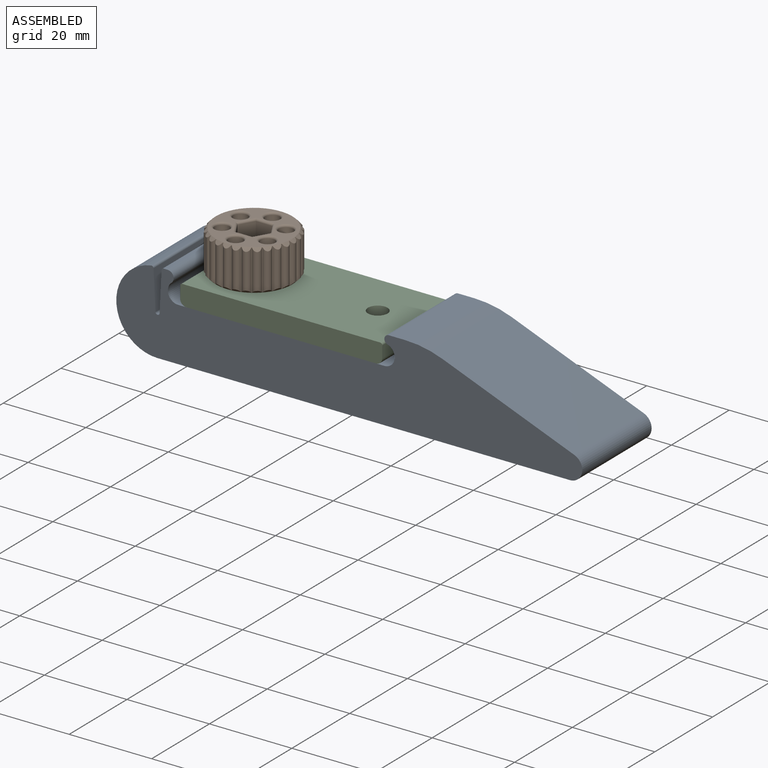
[diagram: assembled view]
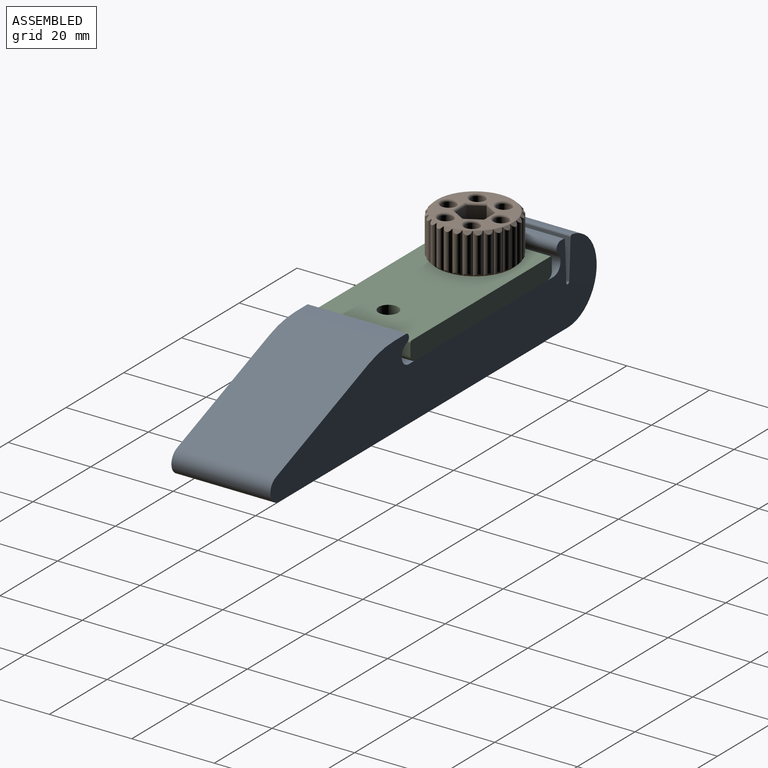
[diagram: assembled view, second angle]
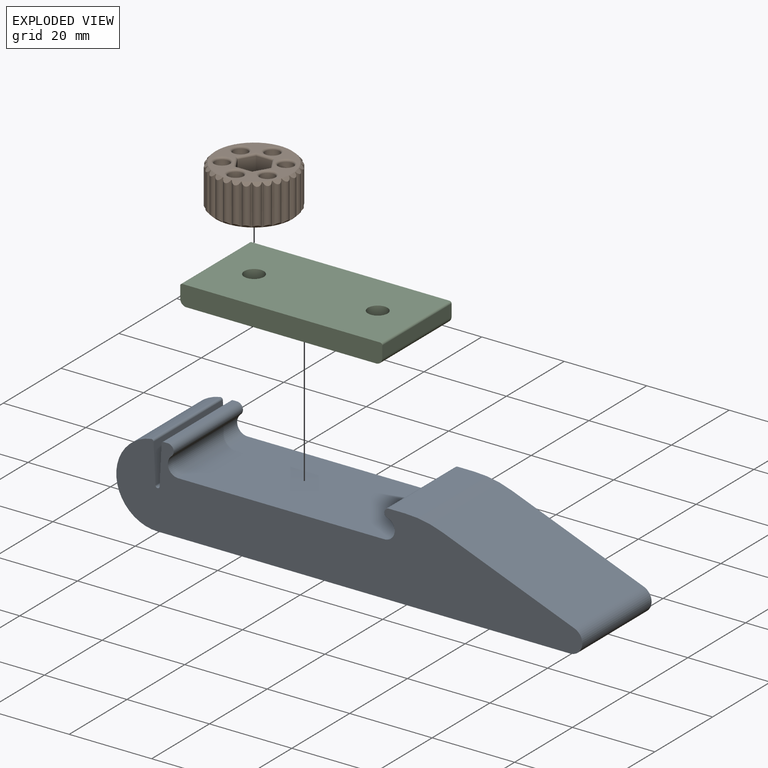
[diagram: exploded view]
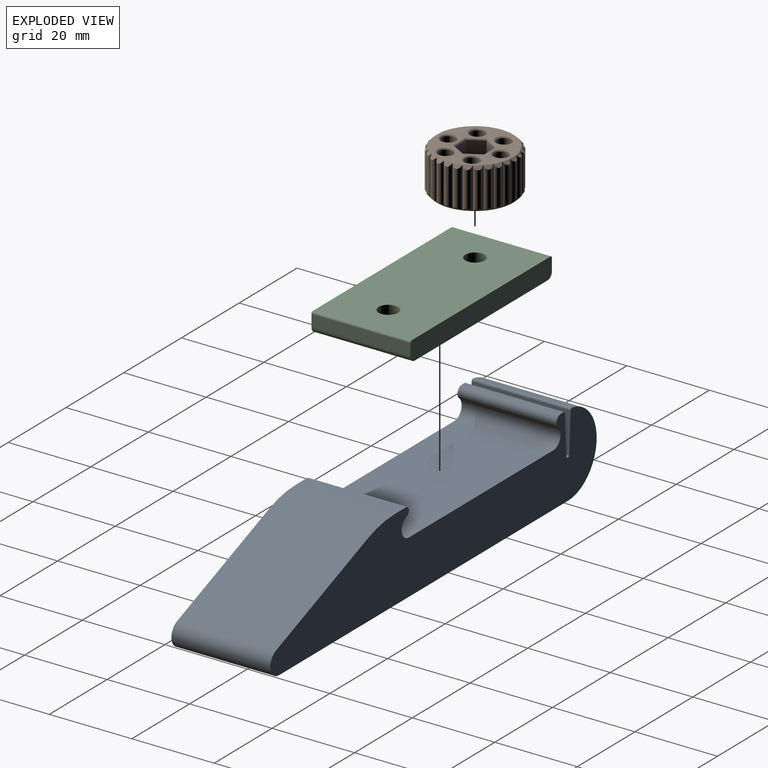
[diagram: exploded view, second angle]
ASSEMBLY  parts=3 mates=2
PART A: 19 faces, bbox 113x24x20 mm
  f0: plane 24x3.92mm, normal (0,0,1), area 94mm2, adj f1,f14,f15,f16
  f1: cylinder r=1.08mm len=24mm, axis (0,1,0), area 73.7mm2, adj f0,f2,f15,f16
  f2: cylinder r=2.5mm len=24mm, axis (0,1,0), area 170.1mm2, adj f1,f3,f15,f16
  f3: plane 50x24mm, normal (0,0,1), area 1200mm2, adj f2,f4,f15,f16
  f4: cylinder r=2.5mm len=24mm, axis (0,1,0), area 146.6mm2, adj f3,f5,f15,f16
  f5: cylinder r=1.46mm len=24mm, axis (0,1,0), area 85.8mm2, adj f4,f6,f15,f16
  f6: plane 24x0.98mm, normal (0,0,1), area 23.4mm2, adj f5,f15,f16,f17
  f7: plane 24x9.53mm, normal (-1,0,0.05), area 228.9mm2, adj f8,f15,f16,f17
  f8: cylinder r=0.5mm len=24mm, axis (0,1,0), area 37.7mm2, adj f7,f9,f15,f16
  f9: plane 24x9.41mm, normal (1,0,0.05), area 226.1mm2, adj f8,f15,f16,f18
  f10: cylinder r=10mm len=24mm, axis (0,1,0), area 716.7mm2, adj f11,f15,f16,f18
  f11: plane 100x24mm, normal (0,0,-1), area 2400mm2, adj f10,f12,f15,f16
  f12: cylinder r=3mm len=24mm, axis (0,1,0), area 199.4mm2, adj f11,f13,f15,f16
  f13: plane 32x24mm, normal (0.36,0,0.93), area 824.4mm2, adj f12,f14,f15,f16
  f14: cylinder r=25mm len=24mm, axis (0,1,0), area 223.3mm2, adj f0,f13,f15,f16
  f15: plane 113x20mm, normal (0,-1,0), area 1538.5mm2, adj f0,f1,f2,f3,f4,f5,f6,f7
  f16: plane 113x20mm, normal (0,1,0), area 1538.5mm2, adj f0,f1,f2,f3,f4,f5,f6,f7
  f17: cylinder r=0.5mm len=24mm, axis (0,-1,0), area 18.3mm2, adj f6,f7,f15,f16
  f18: cylinder r=0.5mm len=24mm, axis (0,1,0), area 20.1mm2, adj f9,f10,f15,f16
PART B: 86 faces, bbox 20x20x10 mm
  f0: plane 18.5x18.5mm, normal (0,0,-1), area 196.9mm2, adj f1,f67,f68,f69,f70,f71,f72,f73
  f1: cone r=9.25mm half-angle=45deg, axis (0,0,1), area 44.4mm2, adj f0,f2,f3,f4,f5,f6,f7,f8
  f2: cylinder r=0.12mm len=9.86mm, axis (0,0,-1), area 2.7mm2, adj f1,f3,f57,f58
  f3: cylinder r=1mm len=9.72mm, axis (0,0,-1), area 21.8mm2, adj f1,f2,f4,f58
  f4: cylinder r=0.12mm len=9.86mm, axis (0,0,-1), area 2.7mm2, adj f1,f3,f5,f58
  f5: cylinder r=1mm len=9.72mm, axis (0,0,-1), area 21.8mm2, adj f1,f4,f6,f58
  f6: cylinder r=0.12mm len=9.86mm, axis (0,0,-1), area 2.7mm2, adj f1,f5,f7,f58
  f7: cylinder r=1mm len=9.72mm, axis (0,0,-1), area 21.8mm2, adj f1,f6,f8,f58
  f8: cylinder r=0.12mm len=9.86mm, axis (0,0,-1), area 2.7mm2, adj f1,f7,f9,f58
  f9: cylinder r=1mm len=9.72mm, axis (0,0,-1), area 21.8mm2, adj f1,f8,f10,f58
  f10: cylinder r=0.12mm len=9.86mm, axis (0,0,-1), area 2.7mm2, adj f1,f9,f11,f58
  f11: cylinder r=1mm len=9.72mm, axis (0,0,-1), area 21.8mm2, adj f1,f10,f12,f58
  f12: cylinder r=0.12mm len=9.86mm, axis (0,0,-1), area 2.7mm2, adj f1,f11,f13,f58
  f13: cylinder r=1mm len=9.72mm, axis (0,0,-1), area 21.8mm2, adj f1,f12,f14,f58
  f14: cylinder r=0.12mm len=9.86mm, axis (0,0,-1), area 2.7mm2, adj f1,f13,f15,f58
  f15: cylinder r=1mm len=9.72mm, axis (0,0,-1), area 21.8mm2, adj f1,f14,f16,f58
  f16: cylinder r=0.12mm len=9.86mm, axis (0,0,-1), area 2.7mm2, adj f1,f15,f17,f58
  f17: cylinder r=1mm len=9.72mm, axis (0,0,-1), area 21.8mm2, adj f1,f16,f18,f58
  f18: cylinder r=0.12mm len=9.86mm, axis (0,0,-1), area 2.7mm2, adj f1,f17,f19,f58
  f19: cylinder r=1mm len=9.72mm, axis (0,0,-1), area 21.8mm2, adj f1,f18,f20,f58
  f20: cylinder r=0.12mm len=9.86mm, axis (0,0,-1), area 2.7mm2, adj f1,f19,f21,f58
  f21: cylinder r=1mm len=9.72mm, axis (0,0,-1), area 21.8mm2, adj f1,f20,f22,f58
  f22: cylinder r=0.12mm len=9.86mm, axis (0,0,-1), area 2.7mm2, adj f1,f21,f23,f58
  f23: cylinder r=1mm len=9.72mm, axis (0,0,-1), area 21.8mm2, adj f1,f22,f24,f58
  f24: cylinder r=0.12mm len=9.86mm, axis (0,0,-1), area 2.7mm2, adj f1,f23,f25,f58
  f25: cylinder r=1mm len=9.72mm, axis (0,0,-1), area 21.8mm2, adj f1,f24,f26,f58
  f26: cylinder r=0.12mm len=9.86mm, axis (0,0,-1), area 2.7mm2, adj f1,f25,f27,f58
  f27: cylinder r=1mm len=9.72mm, axis (0,0,-1), area 21.8mm2, adj f1,f26,f28,f58
  f28: cylinder r=0.12mm len=9.86mm, axis (0,0,-1), area 2.7mm2, adj f1,f27,f29,f58
  f29: cylinder r=1mm len=9.72mm, axis (0,0,-1), area 21.8mm2, adj f1,f28,f30,f58
  f30: cylinder r=0.12mm len=9.86mm, axis (0,0,-1), area 2.7mm2, adj f1,f29,f31,f58
  f31: cylinder r=1mm len=9.72mm, axis (0,0,-1), area 21.8mm2, adj f1,f30,f32,f58
  f32: cylinder r=0.12mm len=9.86mm, axis (0,0,-1), area 2.7mm2, adj f1,f31,f33,f58
  f33: cylinder r=1mm len=9.72mm, axis (0,0,-1), area 21.8mm2, adj f1,f32,f34,f58
  f34: cylinder r=0.12mm len=9.86mm, axis (0,0,-1), area 2.7mm2, adj f1,f33,f35,f58
  f35: cylinder r=1mm len=9.72mm, axis (0,0,-1), area 21.8mm2, adj f1,f34,f36,f58
  f36: cylinder r=0.12mm len=9.86mm, axis (0,0,-1), area 2.7mm2, adj f1,f35,f37,f58
  f37: cylinder r=1mm len=9.72mm, axis (0,0,-1), area 21.8mm2, adj f1,f36,f38,f58
  f38: cylinder r=0.12mm len=9.86mm, axis (0,0,-1), area 2.7mm2, adj f1,f37,f39,f58
  f39: cylinder r=1mm len=9.72mm, axis (0,0,-1), area 21.8mm2, adj f1,f38,f40,f58
  f40: cylinder r=0.12mm len=9.86mm, axis (0,0,-1), area 2.7mm2, adj f1,f39,f41,f58
  f41: cylinder r=1mm len=9.72mm, axis (0,0,-1), area 21.8mm2, adj f1,f40,f42,f58
  f42: cylinder r=0.12mm len=9.86mm, axis (0,0,-1), area 2.7mm2, adj f1,f41,f43,f58
  f43: cylinder r=1mm len=9.72mm, axis (0,0,-1), area 21.8mm2, adj f1,f42,f44,f58
  f44: cylinder r=0.12mm len=9.86mm, axis (0,0,-1), area 2.7mm2, adj f1,f43,f45,f58
  f45: cylinder r=1mm len=9.72mm, axis (0,0,-1), area 21.8mm2, adj f1,f44,f46,f58
  f46: cylinder r=0.12mm len=9.86mm, axis (0,0,-1), area 2.7mm2, adj f1,f45,f47,f58
  f47: cylinder r=1mm len=9.72mm, axis (0,0,-1), area 21.8mm2, adj f1,f46,f48,f58
  f48: cylinder r=0.12mm len=9.86mm, axis (0,0,-1), area 2.7mm2, adj f1,f47,f49,f58
  f49: cylinder r=1mm len=9.72mm, axis (0,0,-1), area 21.8mm2, adj f1,f48,f50,f58
  f50: cylinder r=0.12mm len=9.86mm, axis (0,0,-1), area 2.7mm2, adj f1,f49,f51,f58
  f51: cylinder r=1mm len=9.72mm, axis (0,0,-1), area 21.8mm2, adj f1,f50,f52,f58
  f52: cylinder r=0.12mm len=9.86mm, axis (0,0,-1), area 2.7mm2, adj f1,f51,f53,f58
  f53: cylinder r=1mm len=9.72mm, axis (0,0,-1), area 21.8mm2, adj f1,f52,f54,f58
  f54: cylinder r=0.12mm len=9.86mm, axis (0,0,-1), area 2.7mm2, adj f1,f53,f55,f58
  f55: cylinder r=1mm len=9.72mm, axis (0,0,-1), area 21.8mm2, adj f1,f54,f56,f58
  f56: cylinder r=0.12mm len=9.86mm, axis (0,0,-1), area 2.7mm2, adj f1,f55,f57,f58
  f57: cylinder r=1mm len=9.72mm, axis (0,0,-1), area 21.8mm2, adj f1,f2,f56,f58
  f58: cone r=9.25mm half-angle=45deg, axis (0,0,-1), area 44.4mm2, adj f2,f3,f4,f5,f6,f7,f8,f9
  f59: plane 18.5x18.5mm, normal (0,0,1), area 118mm2, adj f58,f74,f75,f76,f77,f78,f79,f80
  f60: plane 4.5x3.5mm, normal (-0.87,-0.5,0), area 18.2mm2, adj f61,f65,f66,f82
  f61: plane 4.5x4.04mm, normal (0,-1,0), area 18.2mm2, adj f60,f62,f66,f80
  f62: plane 4.5x3.5mm, normal (0.87,-0.5,0), area 18.2mm2, adj f61,f63,f66,f81
  f63: plane 4.5x3.5mm, normal (0.87,0.5,0), area 18.2mm2, adj f62,f64,f66,f83
  f64: plane 4.5x4.04mm, normal (0,1,0), area 18.2mm2, adj f63,f65,f66,f85
  f65: plane 4.5x3.5mm, normal (-0.87,0.5,0), area 18.2mm2, adj f60,f64,f66,f84
  f66: plane 8.08x7mm, normal (0,0,1), area 28.2mm2, adj f60,f61,f62,f63,f64,f65,f67
  f67: cylinder r=2.12mm len=5mm, axis (0,0,1), area 66.8mm2, adj f0,f66
  f68: cylinder r=1.75mm len=9.5mm, axis (0,0,1), area 104.5mm2, adj f0,f79
  f69: cylinder r=1.75mm len=9.5mm, axis (0,0,1), area 104.5mm2, adj f0,f74
  f70: cylinder r=1.75mm len=9.5mm, axis (0,0,1), area 104.5mm2, adj f0,f75
  f71: cylinder r=1.75mm len=9.5mm, axis (0,0,1), area 104.5mm2, adj f0,f76
  f72: cylinder r=1.75mm len=9.5mm, axis (0,0,1), area 104.5mm2, adj f0,f77
  f73: cylinder r=1.75mm len=9.5mm, axis (0,0,1), area 104.5mm2, adj f0,f78
  f74: torus R=2.25mm, axis (0,0,1), area 9.5mm2, adj f59,f69
  f75: torus R=2.25mm, axis (0,0,1), area 9.5mm2, adj f59,f70
  f76: torus R=2.25mm, axis (0,0,1), area 9.5mm2, adj f59,f71
  f77: torus R=2.25mm, axis (0,0,1), area 9.5mm2, adj f59,f72
  f78: torus R=2.25mm, axis (0,0,1), area 9.5mm2, adj f59,f73
  f79: torus R=2.25mm, axis (0,0,1), area 9.5mm2, adj f59,f68
  f80: cylinder r=0.5mm len=4.62mm, axis (1,0,0), area 3.3mm2, adj f59,f61,f81,f82
  f81: cylinder r=0.5mm len=4.25mm, axis (0.5,0.87,0), area 3.3mm2, adj f59,f62,f80,f83
  f82: cylinder r=0.5mm len=4.25mm, axis (0.5,-0.87,0), area 3.3mm2, adj f59,f60,f80,f84
  f83: cylinder r=0.5mm len=4.25mm, axis (-0.5,0.87,0), area 3.3mm2, adj f59,f63,f81,f85
  f84: cylinder r=0.5mm len=4.25mm, axis (-0.5,-0.87,0), area 3.3mm2, adj f59,f65,f82,f85
  f85: cylinder r=0.5mm len=4.62mm, axis (-1,0,0), area 3.3mm2, adj f59,f64,f83,f84
PART C: 12 faces, bbox 49x24x4.9 mm
  f0: plane 48x24mm, normal (0,0,1), area 1116.6mm2, adj f4,f5,f8,f9,f10,f11
  f1: plane 24x2.85mm, normal (-1,0,0), area 68.4mm2, adj f4,f5,f6,f10
  f2: plane 46x24mm, normal (0,0,-1), area 1068.6mm2, adj f4,f5,f6,f7,f8,f9
  f3: plane 24x2.85mm, normal (1,0,0), area 68.4mm2, adj f4,f5,f7,f11
  f4: plane 49x4.85mm, normal (0,-1,0), area 236.6mm2, adj f0,f1,f2,f3,f6,f7,f10,f11
  f5: plane 49x4.85mm, normal (0,1,0), area 236.6mm2, adj f0,f1,f2,f3,f6,f7,f10,f11
  f6: cylinder r=1.5mm len=24mm, axis (0,1,0), area 56.5mm2, adj f1,f2,f4,f5
  f7: cylinder r=1.5mm len=24mm, axis (0,-1,0), area 56.5mm2, adj f2,f3,f4,f5
  f8: cylinder r=2.38mm len=4.85mm, axis (0,0,-1), area 72.4mm2, adj f0,f2
  f9: cylinder r=2.38mm len=4.85mm, axis (0,0,-1), area 72.4mm2, adj f0,f2
  f10: cylinder r=0.5mm len=24mm, axis (0,-1,0), area 18.8mm2, adj f0,f1,f4,f5
  f11: cylinder r=0.5mm len=24mm, axis (0,1,0), area 18.8mm2, adj f0,f3,f4,f5
PLACE A t=(-13.11,9.03,-69.17)mm
PLACE B t=(-3.11,-2.97,-66.12)mm
PLACE C t=(-13.11,9.03,-71.17)mm
MATE planar C.f2 <-> A.f3  axis (0,0,-1) through (11.89,-2.97,-71.17)mm
MATE cylindrical C.f9 <-> B.f67  axis (0,0,-1) through (-3.11,-2.97,-66.32)mm
